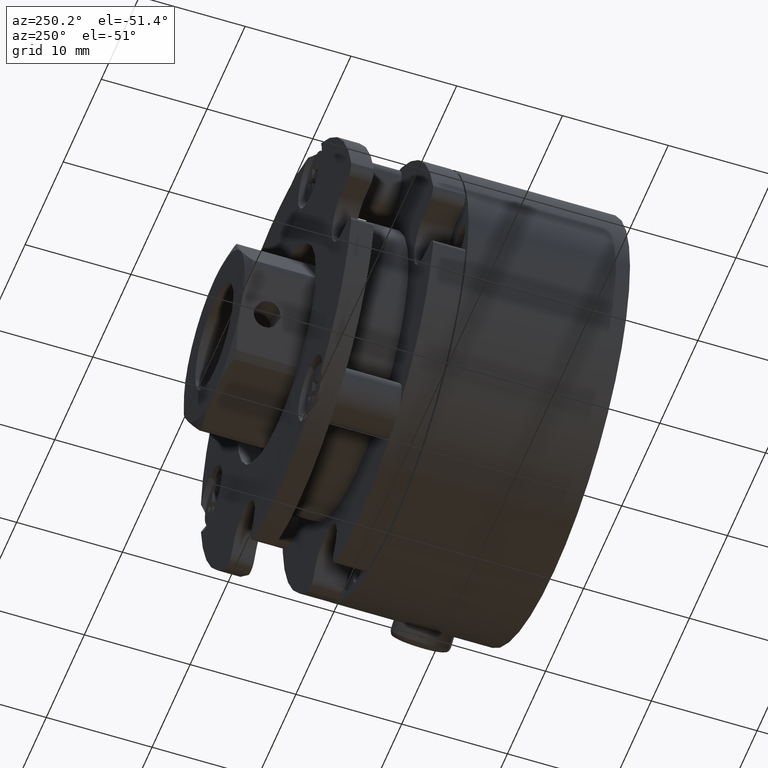
[diagram: clean part render]
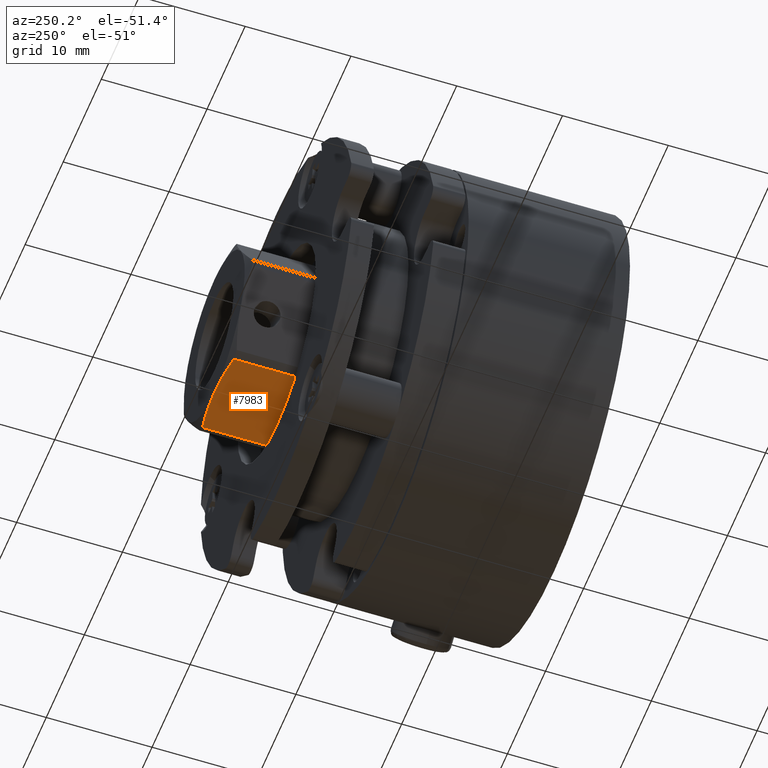
[diagram: same view with one face highlighted and labeled with its STEP entity id]
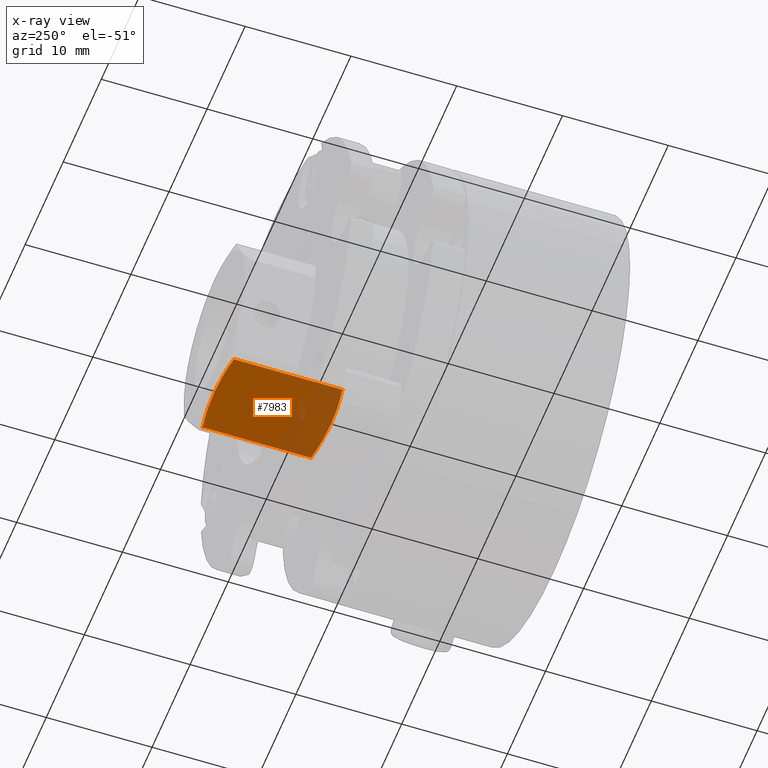
[diagram: x-ray of the same camera — body ghosted, the highlighted face saturated]
A machine part, auxiliary view. The second image highlights one B-rep face of the part: STEP entity #7983.
The next image is the same camera in x-ray: the body ghosted, the highlighted face saturated — about 31% of this face is hidden behind the body in this view.
In plain terms, the highlighted planar face has unit normal (-0, -0, 1).
Its self-contained STEP definition (entity closure, byte-faithful):
#15 = CARTESIAN_POINT ( 'NONE',  ( -2.907109070877672341, -65.89579285325491753, -7.701662241044231472 ) ) ;
#121 = CARTESIAN_POINT ( 'NONE',  ( 3.974115468237979787, -65.66819076464719274, -7.701662241044166635 ) ) ;
#377 = EDGE_CURVE ( 'NONE', #2662, #8296, #8408, .T. ) ;
#427 = CARTESIAN_POINT ( 'NONE',  ( 3.974115468237981563, -55.39613123317957388, -7.701662241044164858 ) ) ;
#489 = EDGE_CURVE ( 'NONE', #2871, #9353, #5826, .T. ) ;
#626 = CARTESIAN_POINT ( 'NONE',  ( -4.272095782997324953, -55.39613123317957388, -7.701662241044243018 ) ) ;
#658 = CARTESIAN_POINT ( 'NONE',  ( -4.272095782997321400, -66.03216099891336910, -7.701662241044243906 ) ) ;
#702 = CARTESIAN_POINT ( 'NONE',  ( -0.1489901573796722500, -66.03216099891338331, -7.701662241044207491 ) ) ;
#981 = ORIENTED_EDGE ( 'NONE', *, *, #4726, .F. ) ;
#1356 = PLANE ( 'NONE',  #8449 ) ;
#1373 = ORIENTED_EDGE ( 'NONE', *, *, #7617, .F. ) ;
#1526 = VECTOR ( 'NONE', #4614, 1000.000000000000000 ) ;
#1649 = CARTESIAN_POINT ( 'NONE',  ( -2.907109070877681223, -55.16852914457185619, -7.701662241044229695 ) ) ;
#1700 = CARTESIAN_POINT ( 'NONE',  ( -0.1489901573796831025, -55.03216099891337620, -7.701662241044203050 ) ) ;
#1884 = CARTESIAN_POINT ( 'NONE',  ( 1.236088299417885006, -55.03216099891337620, -7.701662241044190615 ) ) ;
#1972 = CARTESIAN_POINT ( 'NONE',  ( 3.974115468237981563, -55.39613123317957388, -7.701662241044164858 ) ) ;
#1975 = VECTOR ( 'NONE', #5039, 1000.000000000000000 ) ;
#2470 = CARTESIAN_POINT ( 'NONE',  ( -4.272095782997324953, -55.39613123317957388, -7.701662241044243018 ) ) ;
#2509 = CARTESIAN_POINT ( 'NONE',  ( -0.1489901573796722500, -66.03216099891338331, -7.701662241044207491 ) ) ;
#2662 = VERTEX_POINT ( 'NONE', #427 ) ;
#2692 = EDGE_CURVE ( 'NONE', #9353, #9259, #8648, .T. ) ;
#2871 = VERTEX_POINT ( 'NONE', #626 ) ;
#3468 = LINE ( 'NONE', #8177, #1526 ) ;
#3915 = B_SPLINE_CURVE_WITH_KNOTS ( 'NONE', 3,
 ( #5289, #6753, #1649, #2470 ),
 .UNSPECIFIED., .F., .F.,
 ( 4, 4 ),
 ( 9.161508357502512467E-18, 0.004139139322544187552 ),
 .UNSPECIFIED. ) ;
#3991 = VERTEX_POINT ( 'NONE', #8021 ) ;
#4385 = DIRECTION ( 'NONE',  ( -9.381384558082571189E-15, -1.224646799147378845E-16, 1.000000000000000000 ) ) ;
#4462 = CARTESIAN_POINT ( 'NONE',  ( -0.1489901573796722500, -66.03216099891338331, -7.701662241044207491 ) ) ;
#4614 = DIRECTION ( 'NONE',  ( 3.926395388688756837E-17, 1.000000000000000000, 1.224646799147382543E-16 ) ) ;
#4726 = EDGE_CURVE ( 'NONE', #9259, #3991, #7332, .T. ) ;
#4874 = CARTESIAN_POINT ( 'NONE',  ( -0.1489901573796831025, -55.03216099891337620, -7.701662241044203050 ) ) ;
#4957 = CARTESIAN_POINT ( 'NONE',  ( -1.534068614177248602, -66.03216099891338331, -7.701662241044218149 ) ) ;
#5039 = DIRECTION ( 'NONE',  ( 1.148888257062646722E-30, -1.000000000000000000, -1.224646799147378845E-16 ) ) ;
#5228 = CARTESIAN_POINT ( 'NONE',  ( 2.609128756118328063, -65.89579285325491753, -7.701662241044179069 ) ) ;
#5289 = CARTESIAN_POINT ( 'NONE',  ( -0.1489901573796831025, -55.03216099891337620, -7.701662241044203050 ) ) ;
#5388 = CARTESIAN_POINT ( 'NONE',  ( -4.272095782997324953, -65.66819076464719274, -7.701662241044243906 ) ) ;
#5525 = CARTESIAN_POINT ( 'NONE',  ( 2.609128756118324066, -55.16852914457185619, -7.701662241044178181 ) ) ;
#5826 = LINE ( 'NONE', #658, #1975 ) ;
#5979 = ORIENTED_EDGE ( 'NONE', *, *, #489, .F. ) ;
#6135 = ORIENTED_EDGE ( 'NONE', *, *, #2692, .F. ) ;
#6424 = ORIENTED_EDGE ( 'NONE', *, *, #377, .F. ) ;
#6499 = EDGE_CURVE ( 'NONE', #3991, #2662, #3468, .T. ) ;
#6664 = ORIENTED_EDGE ( 'NONE', *, *, #6499, .F. ) ;
#6753 = CARTESIAN_POINT ( 'NONE',  ( -1.534068614177259482, -55.03216099891337620, -7.701662241044216373 ) ) ;
#7100 = CARTESIAN_POINT ( 'NONE',  ( -4.272095782997324953, -65.66819076464719274, -7.701662241044243906 ) ) ;
#7332 = B_SPLINE_CURVE_WITH_KNOTS ( 'NONE', 3,
 ( #4462, #8094, #5228, #121 ),
 .UNSPECIFIED., .F., .F.,
 ( 4, 4 ),
 ( 8.131516293641283255E-20, 0.004139139322544207501 ),
 .UNSPECIFIED. ) ;
#7617 = EDGE_CURVE ( 'NONE', #8296, #2871, #3915, .T. ) ;
#7896 = FACE_OUTER_BOUND ( 'NONE', #8840, .T. ) ;
#7983 = ADVANCED_FACE ( 'NONE', ( #7896 ), #1356, .F. ) ;
#8021 = CARTESIAN_POINT ( 'NONE',  ( 3.974115468237979787, -65.66819076464719274, -7.701662241044166635 ) ) ;
#8094 = CARTESIAN_POINT ( 'NONE',  ( 1.236088299417904990, -66.03216099891338331, -7.701662241044192392 ) ) ;
#8177 = CARTESIAN_POINT ( 'NONE',  ( 3.974115468237979787, -66.03216099891336910, -7.701662241044168411 ) ) ;
#8296 = VERTEX_POINT ( 'NONE', #1700 ) ;
#8408 = B_SPLINE_CURVE_WITH_KNOTS ( 'NONE', 3,
 ( #1972, #5525, #1884, #4874 ),
 .UNSPECIFIED., .F., .F.,
 ( 4, 4 ),
 ( 3.469446951953613804E-18, 0.004139139322544216175 ),
 .UNSPECIFIED. ) ;
#8449 = AXIS2_PLACEMENT_3D ( 'NONE', #8571, #4385, #8756 ) ;
#8571 = CARTESIAN_POINT ( 'NONE',  ( -4.767792310896679098, -66.03216099891336910, -7.701662241044248347 ) ) ;
#8648 = B_SPLINE_CURVE_WITH_KNOTS ( 'NONE', 3,
 ( #7100, #15, #4957, #702 ),
 .UNSPECIFIED., .F., .F.,
 ( 4, 4 ),
 ( 1.734723475976807094E-18, 0.004139139322544205767 ),
 .UNSPECIFIED. ) ;
#8756 = DIRECTION ( 'NONE',  ( 1.000000000000000000, 0.0000000000000000000, 9.381384558082571189E-15 ) ) ;
#8840 = EDGE_LOOP ( 'NONE', ( #1373, #6424, #6664, #981, #6135, #5979 ) ) ;
#9259 = VERTEX_POINT ( 'NONE', #2509 ) ;
#9353 = VERTEX_POINT ( 'NONE', #5388 ) ;